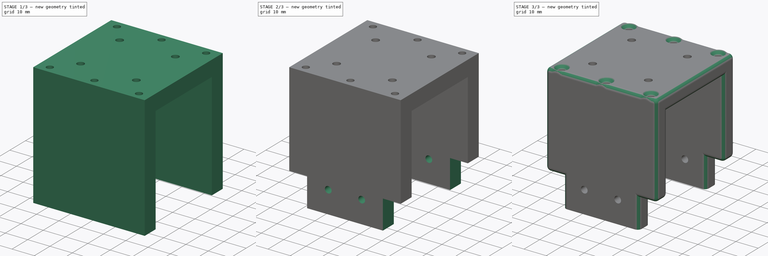
[diagram: build sequence overview — one tinted view per stage of 3, left to right]
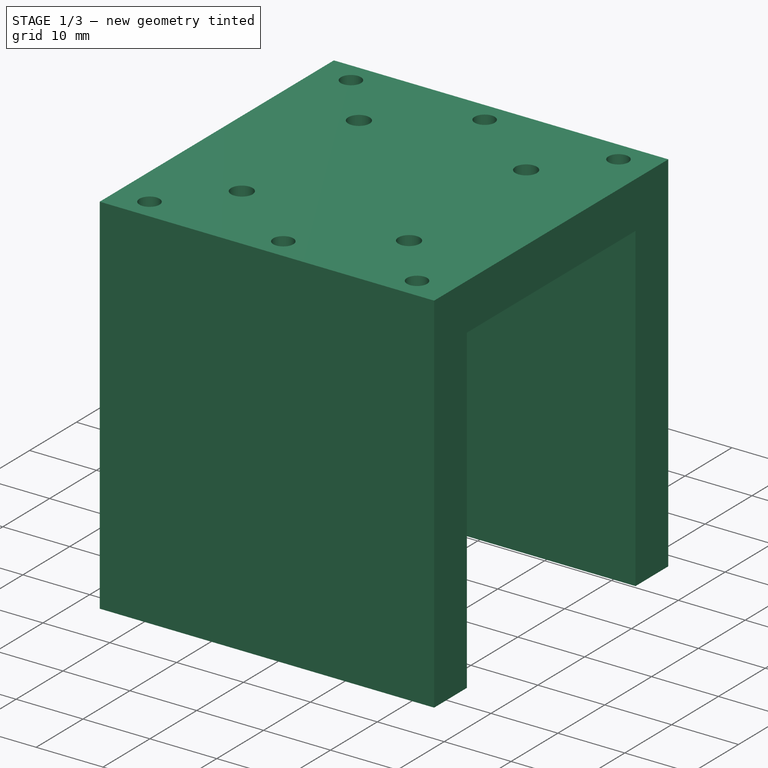
[diagram: stage 1 of 3 — iso view after this stage's code; geometry added in this stage tinted green]
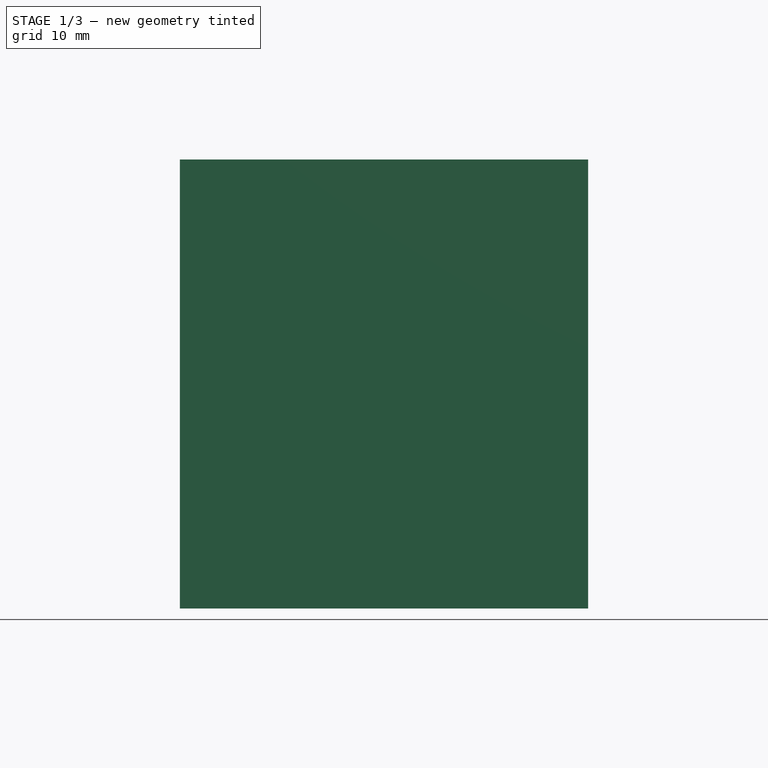
[diagram: stage 1 of 3 — front view after this stage's code; geometry added in this stage tinted green]
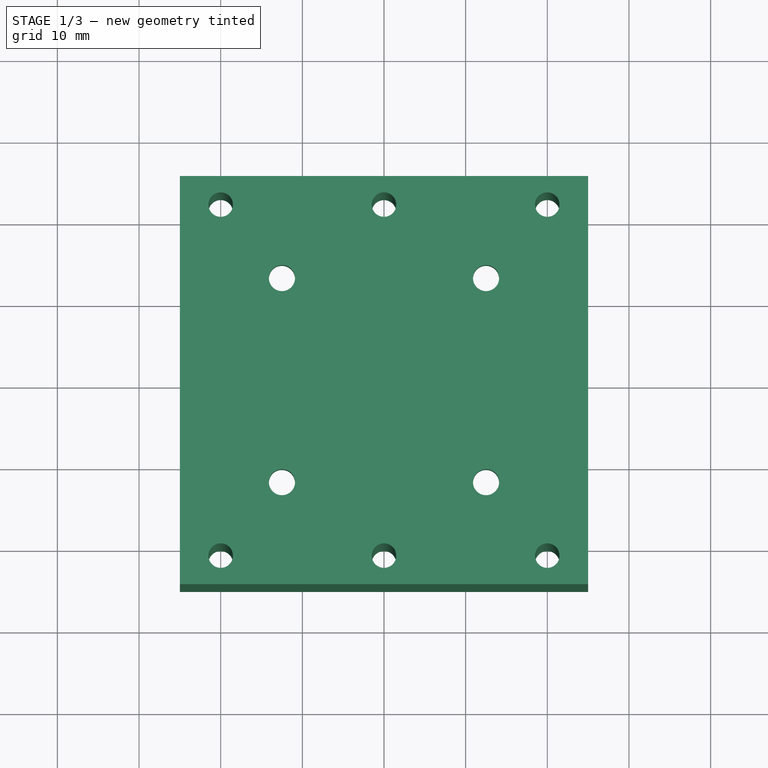
[diagram: stage 1 of 3 — top view after this stage's code; geometry added in this stage tinted green]
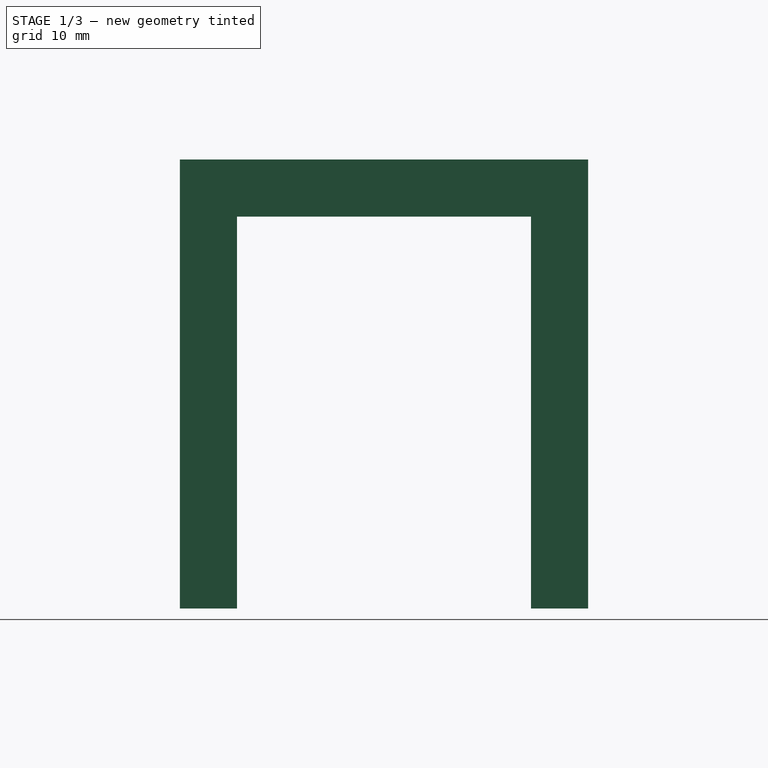
[diagram: stage 1 of 3 — right view after this stage's code; geometry added in this stage tinted green]
FCSTD DOCUMENT  (FreeCAD 1.1R39896 (Git))
Label: z_holder
License: All rights reserved
LicenseURL: https://en.wikipedia.org/wiki/All_rights_reserved
objects: Sketcher::SketchObject×3, PartDesign::Pocket×2, App::Link×1, PartDesign::Pad×1, PartDesign::Chamfer×1, PartDesign::Fillet×1, PartDesign::Body×1, App::Point×1
note: 22 computed .brp shape members not serialized (recipe doc carries the construction recipe); baked Part::Feature solids carry a one-line shape summary decoded from their .brp
EXTERNAL_REF file=Masterfile.FCStd obj=Spreadsheet

FEATURE [App::Link] Link  label="LinkDimensions"
  LinkedObject = -> <external Masterfile.FCStd>#Spreadsheet
FEATURE [Sketcher::SketchObject] Sketch
  ArcFitTolerance = 1e-06
  AttachmentSupport = -> [XY_Plane]
  ExternalTypes = [0]
  FullyConstrained = true
  MakeInternals = false
  MapMode = 5
  expr: Constraints[28] = <<LinkDimensions>>.railCarrierHandle
  expr: Constraints[29] = <<LinkDimensions>>.zHolderWidth
  expr: Constraints[30] = <<LinkDimensions>>.zHolderLength
  expr: Constraints[49] = <<LinkDimensions>>.drillDiameter
  expr: Constraints[50] = <<LinkDimensions>>.drillDiameter + 0.2
  expr: Constraints[51] = 5
  expr: Constraints[52] = <<LinkDimensions>>.zHolderThickness / 2
  sketch-geometry (22):
    g0: LineSegment StartX=-25 StartY=25 StartZ=0 EndX=-25 EndY=-25 EndZ=0
    g1: LineSegment StartX=-25 StartY=-25 StartZ=0 EndX=25 EndY=-25 EndZ=0
    g2: LineSegment StartX=25 StartY=-25 StartZ=0 EndX=25 EndY=25 EndZ=0
    g3: LineSegment StartX=25 StartY=25 StartZ=0 EndX=-25 EndY=25 EndZ=0
    g4: LineSegment [constr] StartX=-20 StartY=21.5 StartZ=0 EndX=-20 EndY=-21.5 EndZ=0
    g5: LineSegment [constr] StartX=-20 StartY=-21.5 StartZ=0 EndX=20 EndY=-21.5 EndZ=0
    g6: LineSegment [constr] StartX=20 StartY=-21.5 StartZ=0 EndX=20 EndY=21.5 EndZ=0
    g7: LineSegment [constr] StartX=20 StartY=21.5 StartZ=0 EndX=-20 EndY=21.5 EndZ=0
    g8: LineSegment [constr] StartX=-12.5 StartY=12.5 StartZ=0 EndX=-12.5 EndY=-12.5 EndZ=0
    g9: LineSegment [constr] StartX=-12.5 StartY=-12.5 StartZ=0 EndX=12.5 EndY=-12.5 EndZ=0
    g10: LineSegment [constr] StartX=12.5 StartY=-12.5 StartZ=0 EndX=12.5 EndY=12.5 EndZ=0
    g11: LineSegment [constr] StartX=12.5 StartY=12.5 StartZ=0 EndX=-12.5 EndY=12.5 EndZ=0
    g12: Circle CenterX=-20 CenterY=21.5 CenterZ=0 NormalX=0 NormalY=0 NormalZ=1 AngleXU=0 Radius=1.5
    g13: Circle CenterX=3e-16 CenterY=21.5 CenterZ=0 NormalX=0 NormalY=0 NormalZ=1 AngleXU=0 Radius=1.5
    g14: Circle CenterX=20 CenterY=21.5 CenterZ=0 NormalX=0 NormalY=0 NormalZ=1 AngleXU=0 Radius=1.5
    g15: Circle CenterX=-20 CenterY=-21.5 CenterZ=0 NormalX=0 NormalY=0 NormalZ=1 AngleXU=0 Radius=1.5
    g16: Circle CenterX=8e-16 CenterY=-21.5 CenterZ=0 NormalX=0 NormalY=0 NormalZ=1 AngleXU=0 Radius=1.5
    g17: Circle CenterX=20 CenterY=-21.5 CenterZ=0 NormalX=0 NormalY=0 NormalZ=1 AngleXU=0 Radius=1.5
    g18: Circle CenterX=12.5 CenterY=-12.5 CenterZ=0 NormalX=0 NormalY=0 NormalZ=1 AngleXU=0 Radius=1.6
    g19: Circle CenterX=-12.5 CenterY=-12.5 CenterZ=0 NormalX=0 NormalY=0 NormalZ=1 AngleXU=0 Radius=1.6
    g20: Circle CenterX=-12.5 CenterY=12.5 CenterZ=0 NormalX=0 NormalY=0 NormalZ=1 AngleXU=0 Radius=1.6
    g21: Circle CenterX=12.5 CenterY=12.5 CenterZ=0 NormalX=0 NormalY=0 NormalZ=1 AngleXU=0 Radius=1.6
  constraints (53):
    c: Coincident(g0,g1)
    c: Coincident(g1,g2)
    c: Coincident(g2,g3)
    c: Coincident(g3,g0)
    c: Vertical(g0)
    c: Vertical(g2)
    c: Horizontal(g1)
    c: Horizontal(g3)
    c: Coincident(g4,g5)
    c: Coincident(g5,g6)
    c: Coincident(g6,g7)
    c: Coincident(g7,g4)
    c: Vertical(g4)
    c: Vertical(g6)
    c: Horizontal(g5)
    c: Horizontal(g7)
    c: Coincident(g8,g9)
    c: Coincident(g9,g10)
    c: Coincident(g10,g11)
    c: Coincident(g11,g8)
    c: Vertical(g8)
    c: Vertical(g10)
    c: Horizontal(g9)
    c: Horizontal(g11)
    c: Symmetric(g0,g1,g-1)
    c: Symmetric(g4,g5,g-1)
    c: Symmetric(g8,g9,g-1)
    c: Equal(g11,g8)
    c: DistanceX(g11,g11) = 25
    c: DistanceX(g3,g3) = 50
    c: DistanceY(g0,g0) = 50
    c: Coincident(g12,g4)
    c: Symmetric(g7,g7,g13)
    c: Coincident(g14,g6)
    c: Coincident(g15,g4)
    c: Symmetric(g5,g5,g16)
    c: Coincident(g17,g5)
    c: Coincident(g18,g9)
    c: Coincident(g19,g8)
    c: Coincident(g20,g8)
    c: Coincident(g21,g10)
    c: Equal(g20,g21)
    c: Equal(g21,g18)
    c: Equal(g18,g19)
    c: Equal(g12,g13)
    c: Equal(g13,g14)
    c: Equal(g14,g17)
    c: Equal(g17,g16)
    c: Equal(g16,g15)
    c: Diameter(g15) = 3
    c: Diameter(g18) = 3.2
    c: DistanceX(g0,g4) = 5
    c: DistanceY(g6,g2) = 3.5
FEATURE [PartDesign::Pad] Pad
  Direction = (0,0,1)
  Length = 55
  Length2 = 10
  Profile = -> Sketch
  ReferenceAxis = -> Sketch [N_Axis]
  Refine = true
  Suppressed = false
  Type = 0
  expr: Length = <<LinkDimensions>>.zHolderHeight
FEATURE [Sketcher::SketchObject] Sketch001
  ArcFitTolerance = 1e-06
  AttachmentSupport = -> [Pad]
  ExternalGeometry = -> [Pad]
  ExternalTypes = [0]
  FullyConstrained = true
  MakeInternals = false
  MapMode = 5
  Placement = pos=(-25,0,0) rot=(0.57735,-0.57735,-0.57735;2.0944rad)
  expr: Constraints[8] = <<LinkDimensions>>.zHolderThickness
  expr: Constraints[9] = <<LinkDimensions>>.zHolderThickness
  sketch-geometry (4):
    g0: LineSegment StartX=-18 StartY=0 StartZ=0 EndX=18 EndY=0 EndZ=0
    g1: LineSegment StartX=18 StartY=0 StartZ=0 EndX=18 EndY=48 EndZ=0
    g2: LineSegment StartX=18 StartY=48 StartZ=0 EndX=-18 EndY=48 EndZ=0
    g3: LineSegment StartX=-18 StartY=48 StartZ=0 EndX=-18 EndY=0 EndZ=0
  constraints (11):
    c: Coincident(g0,g1)
    c: Coincident(g1,g2)
    c: Coincident(g2,g3)
    c: Coincident(g3,g0)
    c: Horizontal(g0)
    c: Vertical(g1)
    c: Vertical(g3)
    c: PointOnObject(g0,g-1)
    c: DistanceX(g-3,g2) = 7
    c: DistanceY(g2,g-3) = 7
    c: Symmetric(g2,g1,g-2)
FEATURE [PartDesign::Pocket] Pocket
  BaseFeature = -> Pad
  Direction = (1,0,0)
  Length = 5
  Length2 = 5
  Profile = -> Sketch001
  ReferenceAxis = -> Sketch001 [N_Axis]
  Refine = true
  Suppressed = false
  Type = 1
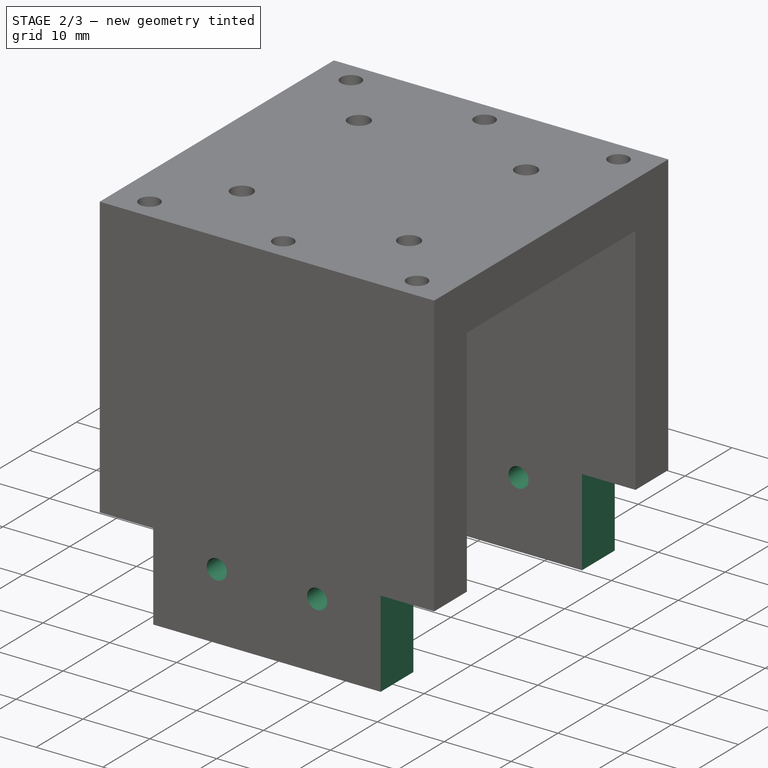
[diagram: stage 2 of 3 — iso view after this stage's code; geometry added in this stage tinted green]
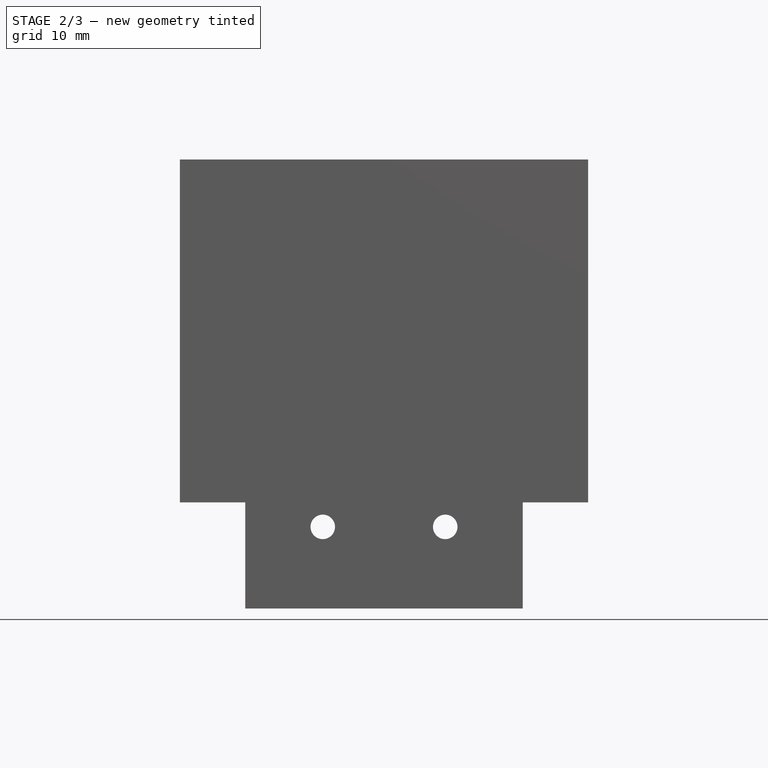
[diagram: stage 2 of 3 — front view after this stage's code; geometry added in this stage tinted green]
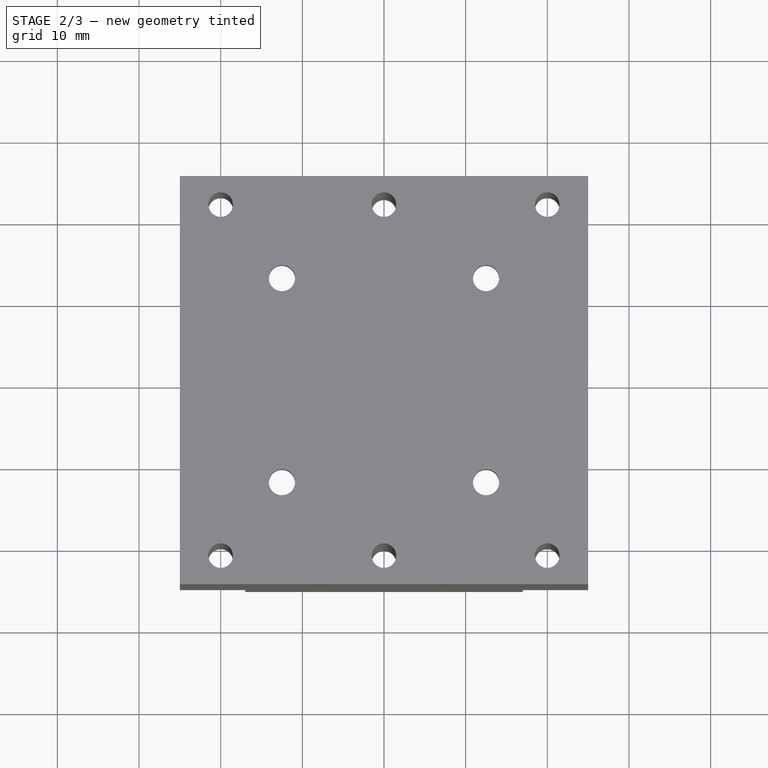
[diagram: stage 2 of 3 — top view after this stage's code; geometry added in this stage tinted green]
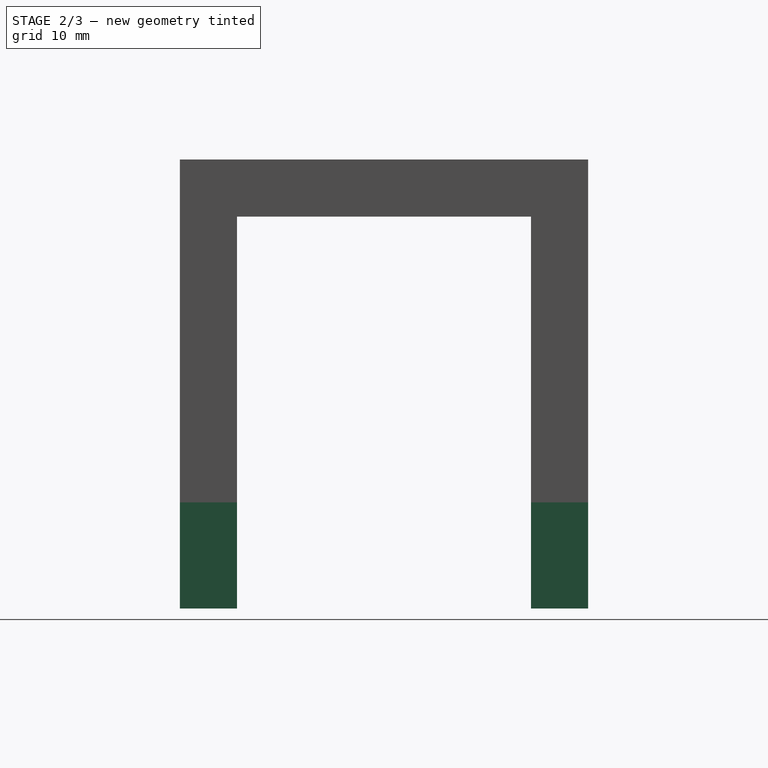
[diagram: stage 2 of 3 — right view after this stage's code; geometry added in this stage tinted green]
FEATURE [Sketcher::SketchObject] Sketch002
  ArcFitTolerance = 1e-06
  AttachmentSupport = -> [Pocket]
  ExternalGeometry = -> [Pocket]
  ExternalTypes = [0]
  FullyConstrained = true
  MakeInternals = false
  MapMode = 5
  Placement = pos=(0,25,0) rot=(0,0.707107,0.707107;3.14159rad)
  expr: Constraints[14] = <<LinkDimensions>>.drillDiameter
  expr: Constraints[35] = 8
  sketch-geometry (14):
    g0: LineSegment [constr] StartX=-7.5 StartY=0 StartZ=0 EndX=7.5 EndY=0 EndZ=0
    g1: LineSegment [constr] StartX=7.5 StartY=0 StartZ=0 EndX=7.5 EndY=10 EndZ=0
    g2: LineSegment [constr] StartX=7.5 StartY=10 StartZ=0 EndX=-7.5 EndY=10 EndZ=0
    g3: LineSegment [constr] StartX=-7.5 StartY=10 StartZ=0 EndX=-7.5 EndY=0 EndZ=0
    g4: Circle CenterX=-7.5 CenterY=10 CenterZ=0 NormalX=0 NormalY=0 NormalZ=1 AngleXU=0 Radius=1.5
    g5: Circle CenterX=7.5 CenterY=10 CenterZ=0 NormalX=0 NormalY=0 NormalZ=1 AngleXU=0 Radius=1.5
    g6: LineSegment StartX=-25 StartY=0 StartZ=0 EndX=-17 EndY=0 EndZ=0
    g7: LineSegment StartX=-17 StartY=0 StartZ=0 EndX=-17 EndY=13 EndZ=0
    g8: LineSegment StartX=-17 StartY=13 StartZ=0 EndX=-25 EndY=13 EndZ=0
    g9: LineSegment StartX=-25 StartY=13 StartZ=0 EndX=-25 EndY=0 EndZ=0
    g10: LineSegment StartX=25 StartY=0 StartZ=0 EndX=25 EndY=13 EndZ=0
    g11: LineSegment StartX=25 StartY=13 StartZ=0 EndX=17 EndY=13 EndZ=0
    g12: LineSegment StartX=17 StartY=13 StartZ=0 EndX=17 EndY=0 EndZ=0
    g13: LineSegment StartX=17 StartY=0 StartZ=0 EndX=25 EndY=0 EndZ=0
  constraints (37):
    c: Coincident(g0,g1)
    c: Coincident(g1,g2)
    c: Coincident(g2,g3)
    c: Coincident(g3,g0)
    c: Horizontal(g0)
    c: Vertical(g1)
    c: Vertical(g3)
    c: PointOnObject(g0,g-1)
    c: Symmetric(g2,g1,g-2)
    c: DistanceX(g2,g2) = 15
    c: DistanceY(g1,g1) = 10
    c: Coincident(g4,g2)
    c: Coincident(g5,g1)
    c: Equal(g4,g5)
    c: Diameter(g5) = 3
    c: Coincident(g6,g7)
    c: Coincident(g7,g8)
    c: Coincident(g8,g9)
    c: Coincident(g9,g6)
    c: Horizontal(g6)
    c: Horizontal(g8)
    c: Vertical(g7)
    c: Vertical(g9)
    c: Coincident(g6,g-3)
    c: Coincident(g10,g11)
    c: Coincident(g11,g12)
    c: Coincident(g12,g13)
    c: Coincident(g13,g10)
    c: Vertical(g10)
    c: Vertical(g12)
    c: Horizontal(g11)
    c: Horizontal(g13)
    c: Coincident(g10,g-4)
    c: Equal(g8,g11)
    c: Equal(g9,g12)
    c: DistanceX(g8,g8) = 8
    c: DistanceY(g9,g9) = 13
FEATURE [PartDesign::Pocket] Pocket001
  BaseFeature = -> Pocket
  Direction = (0,-1,2e-16)
  Length = 5
  Length2 = 5
  Profile = -> Sketch002
  ReferenceAxis = -> Sketch002 [N_Axis]
  Refine = true
  Suppressed = false
  Type = 1
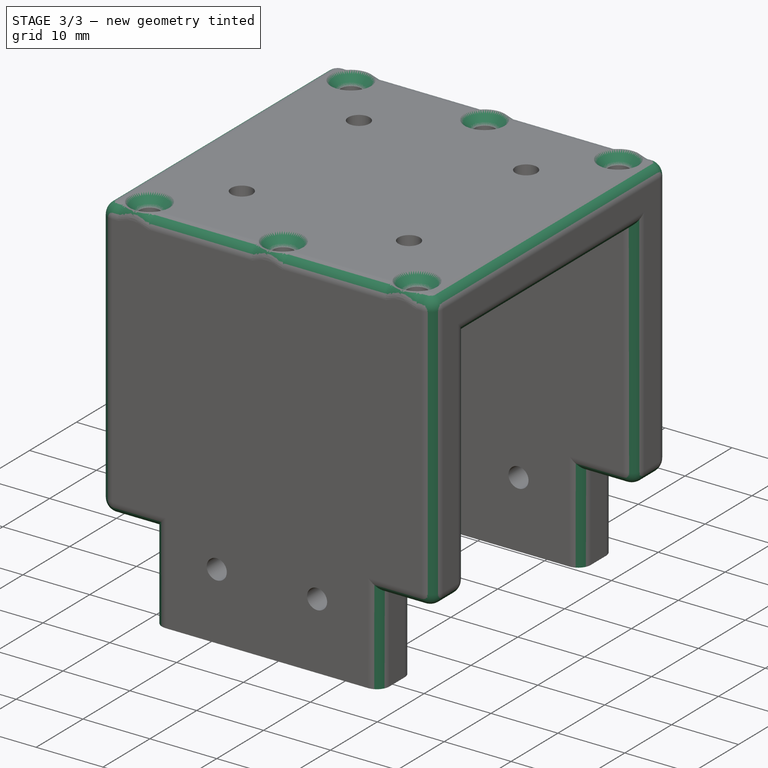
[diagram: stage 3 of 3 — iso view after this stage's code; geometry added in this stage tinted green]
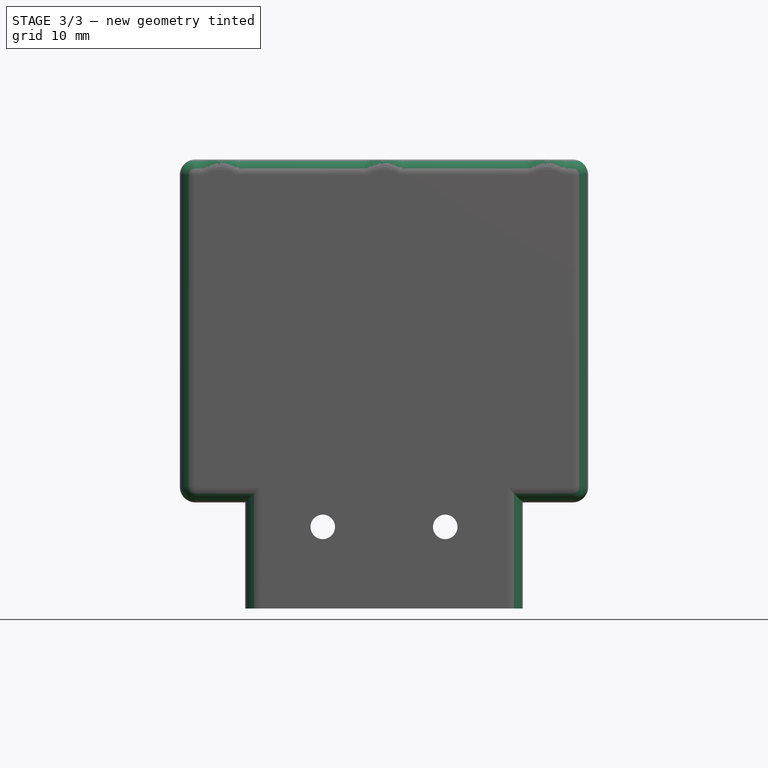
[diagram: stage 3 of 3 — front view after this stage's code; geometry added in this stage tinted green]
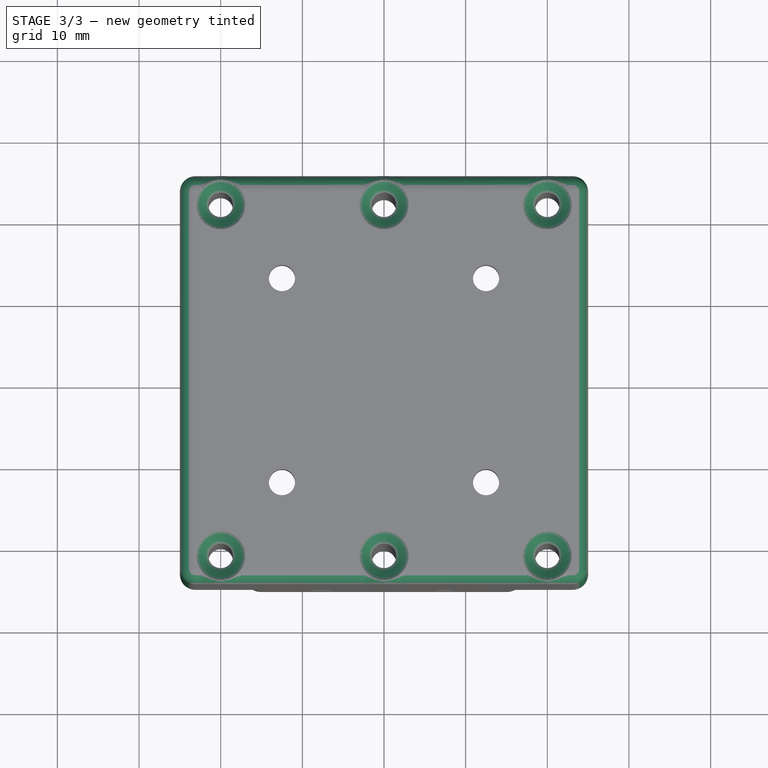
[diagram: stage 3 of 3 — top view after this stage's code; geometry added in this stage tinted green]
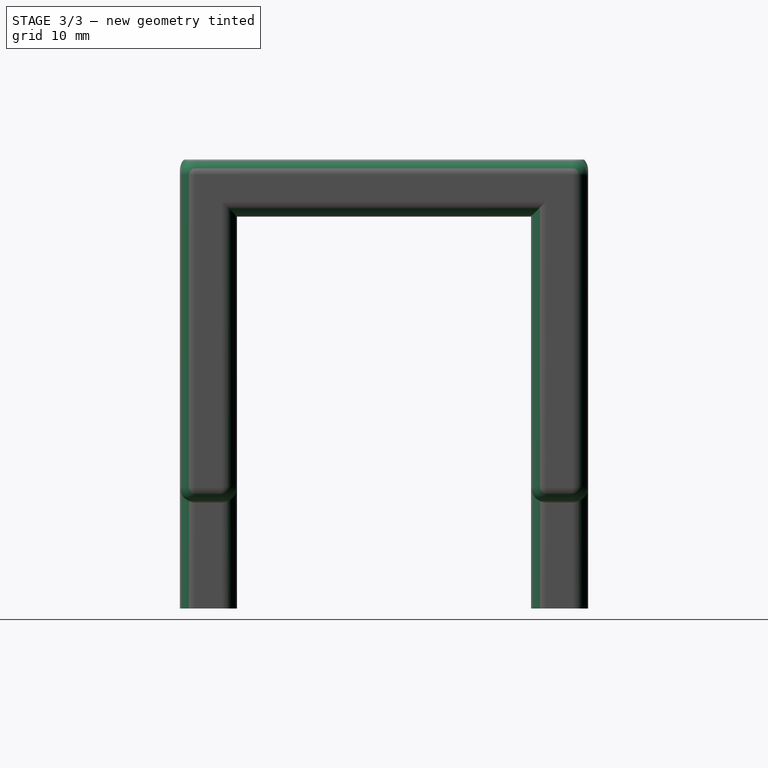
[diagram: stage 3 of 3 — right view after this stage's code; geometry added in this stage tinted green]
FEATURE [PartDesign::Chamfer] Chamfer
  Angle = 45
  Base = -> Pocket001 [Edge57,Edge56,Edge55,Edge52,Edge53,Edge54]
  BaseFeature = -> Pocket001
  ChamferType = 0
  FlipDirection = false
  Refine = true
  Size = 1.5
  Size2 = 1
  SupportTransform = false
  Suppressed = false
  UseAllEdges = false
FEATURE [PartDesign::Fillet] Fillet
  Base = -> Chamfer [Edge39,Edge37,Edge23,Edge41,Edge5,Edge2,Edge18,Edge19,Edge20,Edge78,Edge25,Edge22,Edge17,Edge21,Edge42,Edge79,Edge27,Edge28,Edge29,Edge3,Edge32,Edge76,Edge69,Edge36,Edge35,Edge34,Edge33,Edge4,Edge24,Edge66,Edge67,Edge70,Edge38,Edge75]
  BaseFeature = -> Chamfer
  Radius = 1.9
  Refine = true
  SupportTransform = false
  Suppressed = false
  UseAllEdges = false
FEATURE [PartDesign::Body] Body
  AllowCompound = false
  Group = -> [Sketch,Pad,Sketch001,Pocket,Sketch002,Pocket001,Chamfer,Fillet]
  Origin = -> Origin
  Tip = -> Fillet
FEATURE [App::Point] Origin001  label="Origin"
  Role = Origin
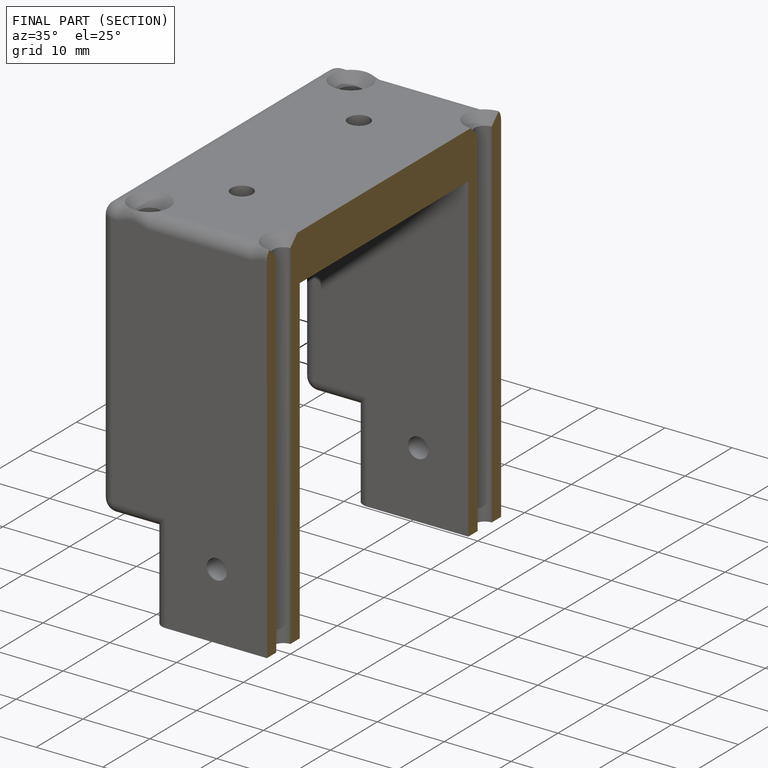
[diagram: finished part — half-section view (interior)]
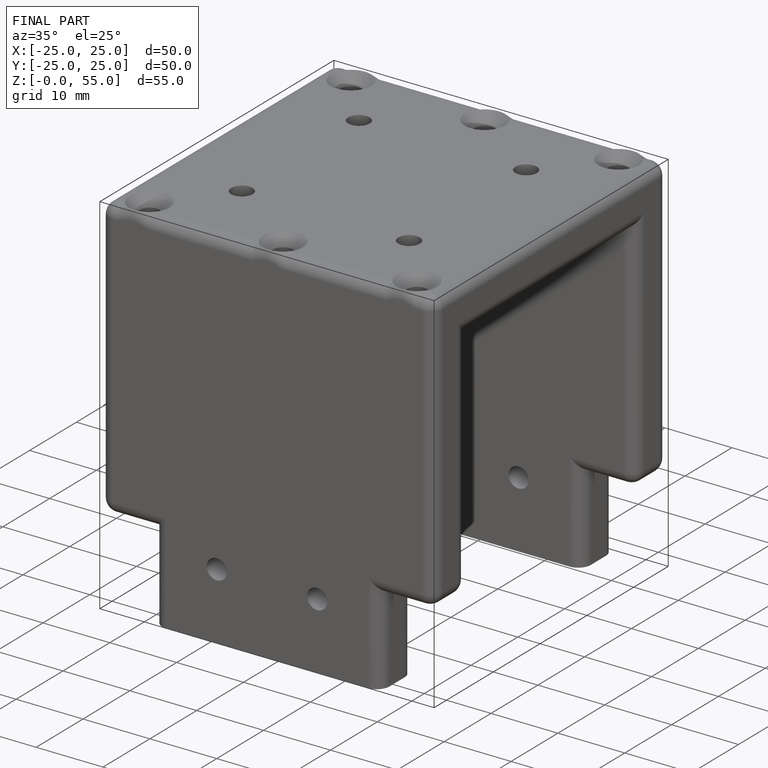
[diagram: finished part — iso view with bounding-box wireframe]
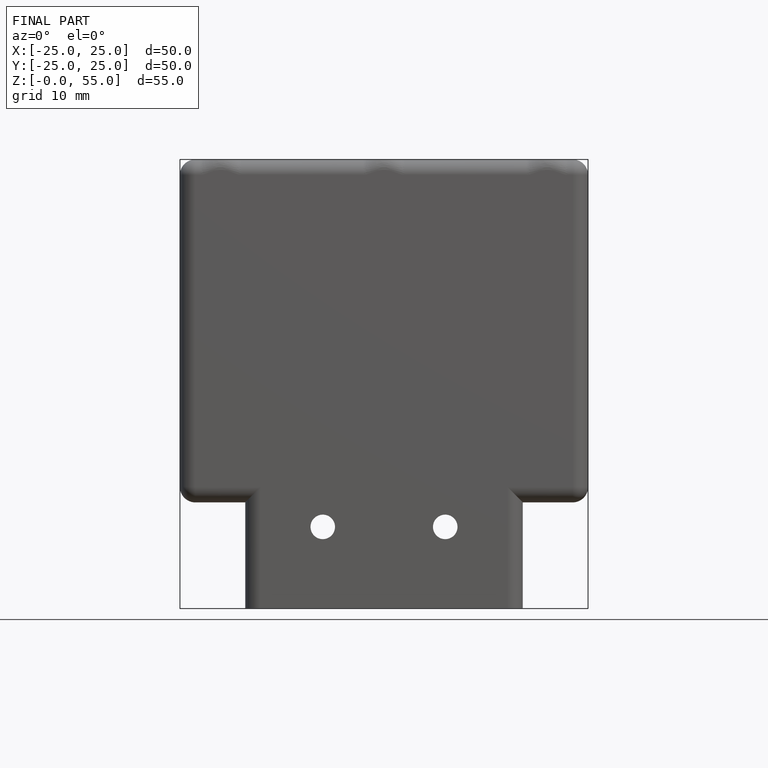
[diagram: finished part — front view with bounding-box wireframe]
